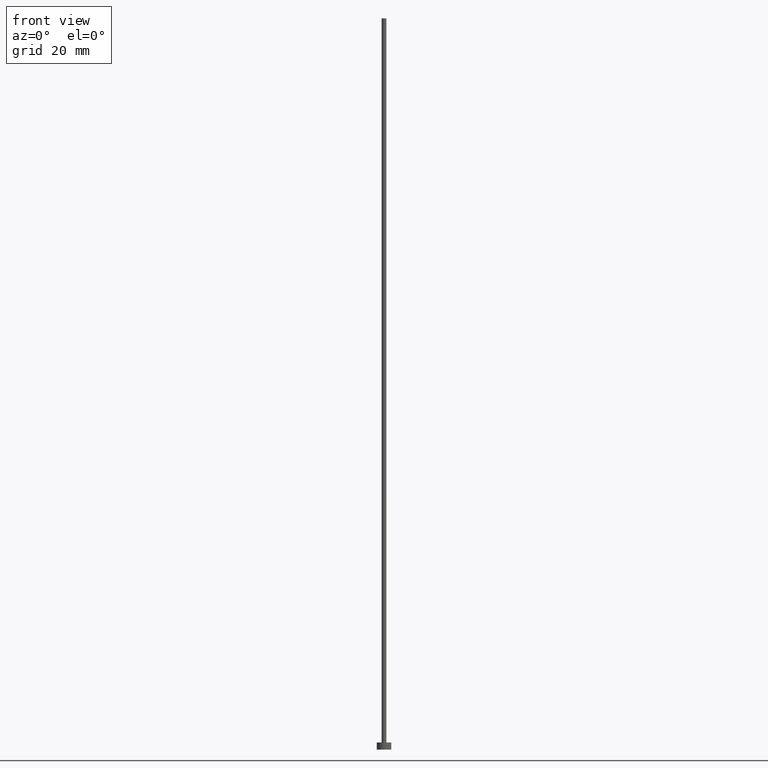
[diagram: clean part render]
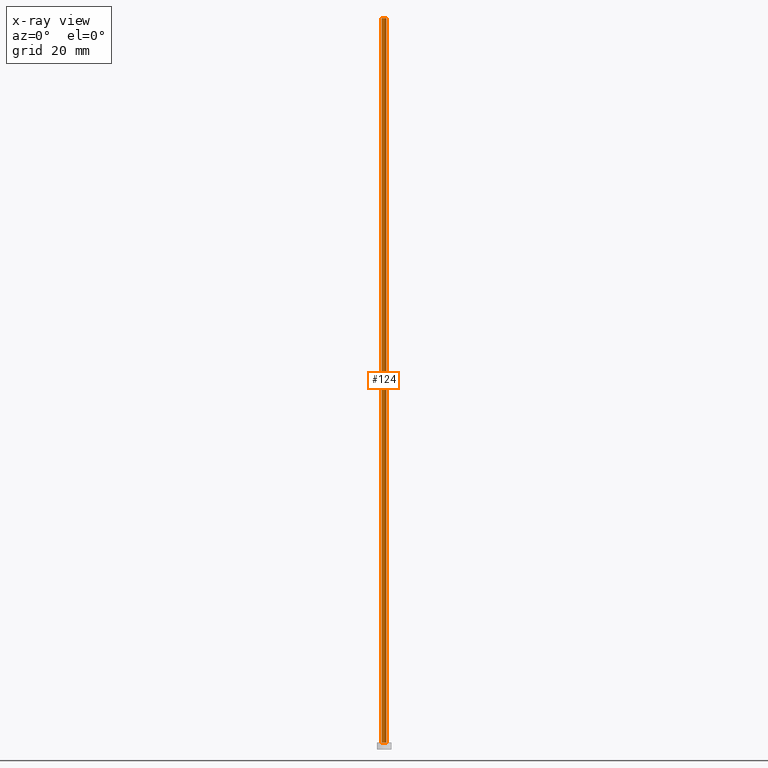
[diagram: x-ray — body ghosted, one internal face saturated and labeled with its STEP entity id]
A machine part, front view, then the same camera in x-ray: the body is ghosted and one INTERNAL B-rep face — a face not visible from any outside direction — is saturated and labeled: STEP entity #124.
In plain terms, the highlighted cylindrical surface (edge-blend (fillet) strip) has radius 0.4 mm, axis along (-0, -0, -1).
Its self-contained STEP definition (entity closure, byte-faithful):
#12 = VECTOR ( 'NONE', #38, 1000.000000000000000 ) ;
#19 = FACE_OUTER_BOUND ( 'NONE', #69, .T. ) ;
#23 = ORIENTED_EDGE ( 'NONE', *, *, #155, .F. ) ;
#32 = DIRECTION ( 'NONE',  ( 1.000000000000000000, 0.000000000000000000, 0.000000000000000000 ) ) ;
#34 = CARTESIAN_POINT ( 'NONE',  ( 0.000000000000000000, 0.000000000000000000, 1.199999999999999956 ) ) ;
#38 = DIRECTION ( 'NONE',  ( -0.000000000000000000, -0.000000000000000000, -1.000000000000000000 ) ) ;
#43 = VERTEX_POINT ( 'NONE', #128 ) ;
#47 = VERTEX_POINT ( 'NONE', #149 ) ;
#48 = DIRECTION ( 'NONE',  ( 0.000000000000000000, 0.000000000000000000, 1.000000000000000000 ) ) ;
#51 = CARTESIAN_POINT ( 'NONE',  ( 0.4000000000000000222, 4.898587196589413075E-17, 125.0000000000000000 ) ) ;
#56 = DIRECTION ( 'NONE',  ( -1.000000000000000000, 0.000000000000000000, 0.000000000000000000 ) ) ;
#59 = CIRCLE ( 'NONE', #245, 0.4000000000000000222 ) ;
#69 = EDGE_LOOP ( 'NONE', ( #239, #191, #172, #23 ) ) ;
#82 = EDGE_CURVE ( 'NONE', #165, #43, #247, .T. ) ;
#94 = LINE ( 'NONE', #229, #177 ) ;
#103 = VERTEX_POINT ( 'NONE', #255 ) ;
#115 = DIRECTION ( 'NONE',  ( -0.000000000000000000, -0.000000000000000000, -1.000000000000000000 ) ) ;
#124 = ADVANCED_FACE ( 'NONE', ( #19 ), #212, .T. ) ;
#128 = CARTESIAN_POINT ( 'NONE',  ( -0.4000000000000000222, 0.000000000000000000, 125.0000000000000000 ) ) ;
#137 = CARTESIAN_POINT ( 'NONE',  ( -0.4000000000000000222, 0.000000000000000000, 125.0000000000000000 ) ) ;
#138 = EDGE_CURVE ( 'NONE', #165, #103, #94, .T. ) ;
#139 = AXIS2_PLACEMENT_3D ( 'NONE', #151, #48, #208 ) ;
#149 = CARTESIAN_POINT ( 'NONE',  ( -0.4000000000000000222, 0.000000000000000000, 1.199999999999999956 ) ) ;
#151 = CARTESIAN_POINT ( 'NONE',  ( 0.000000000000000000, 0.000000000000000000, 125.0000000000000000 ) ) ;
#155 = EDGE_CURVE ( 'NONE', #43, #47, #254, .T. ) ;
#165 = VERTEX_POINT ( 'NONE', #51 ) ;
#172 = ORIENTED_EDGE ( 'NONE', *, *, #207, .T. ) ;
#177 = VECTOR ( 'NONE', #179, 1000.000000000000000 ) ;
#179 = DIRECTION ( 'NONE',  ( -0.000000000000000000, -0.000000000000000000, -1.000000000000000000 ) ) ;
#191 = ORIENTED_EDGE ( 'NONE', *, *, #138, .T. ) ;
#207 = EDGE_CURVE ( 'NONE', #103, #47, #59, .T. ) ;
#208 = DIRECTION ( 'NONE',  ( 1.000000000000000000, 0.000000000000000000, 0.000000000000000000 ) ) ;
#212 = CYLINDRICAL_SURFACE ( 'NONE', #216, 0.4000000000000000222 ) ;
#216 = AXIS2_PLACEMENT_3D ( 'NONE', #231, #115, #56 ) ;
#229 = CARTESIAN_POINT ( 'NONE',  ( 0.4000000000000000222, 4.898587196589413075E-17, 125.0000000000000000 ) ) ;
#231 = CARTESIAN_POINT ( 'NONE',  ( 0.000000000000000000, 0.000000000000000000, 125.0000000000000000 ) ) ;
#234 = DIRECTION ( 'NONE',  ( 0.000000000000000000, 0.000000000000000000, 1.000000000000000000 ) ) ;
#239 = ORIENTED_EDGE ( 'NONE', *, *, #82, .F. ) ;
#245 = AXIS2_PLACEMENT_3D ( 'NONE', #34, #234, #32 ) ;
#247 = CIRCLE ( 'NONE', #139, 0.4000000000000000222 ) ;
#254 = LINE ( 'NONE', #137, #12 ) ;
#255 = CARTESIAN_POINT ( 'NONE',  ( 0.4000000000000000222, 4.898587196589413075E-17, 1.199999999999999956 ) ) ;